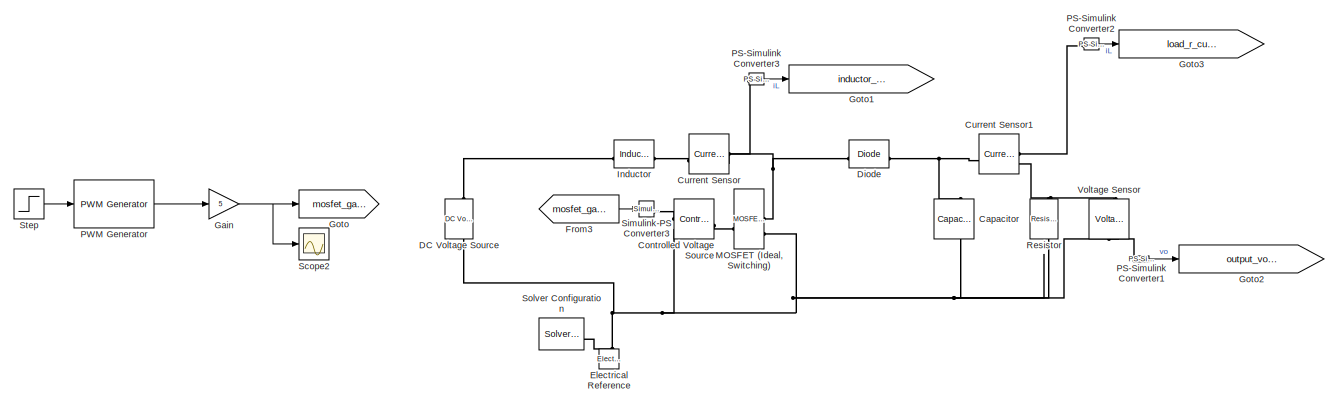
[diagram: root canvas - part 1/3, top left region]
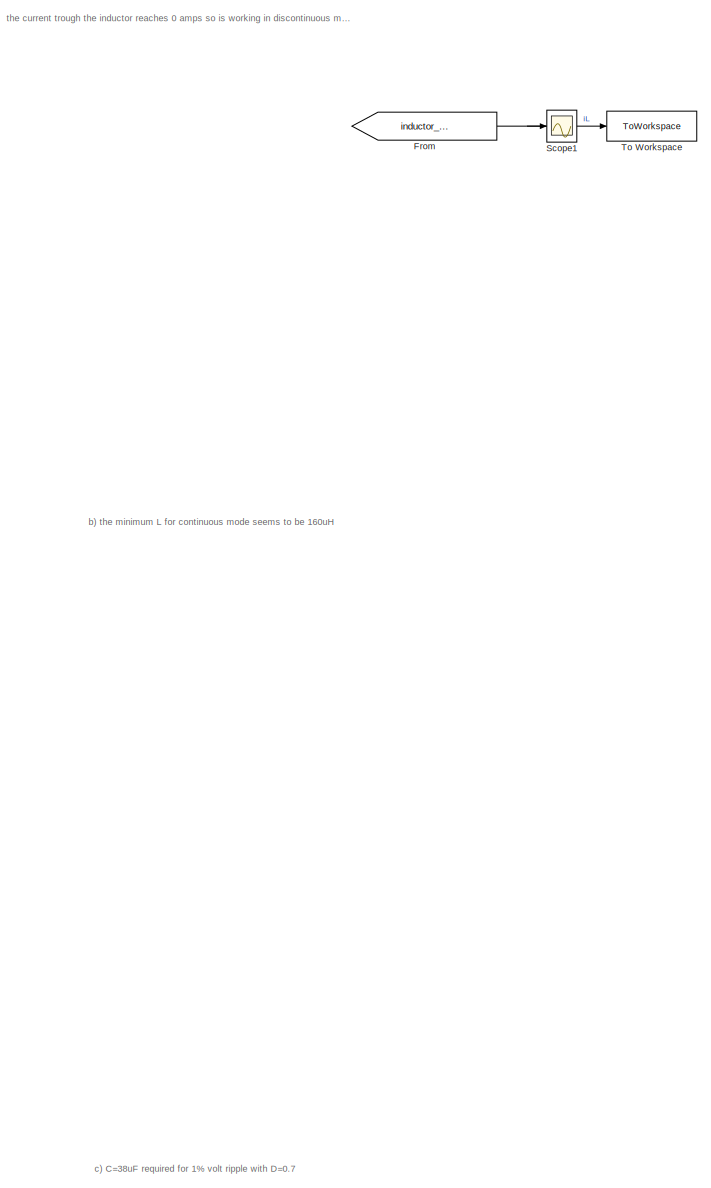
[diagram: root canvas - part 2/3, central region]
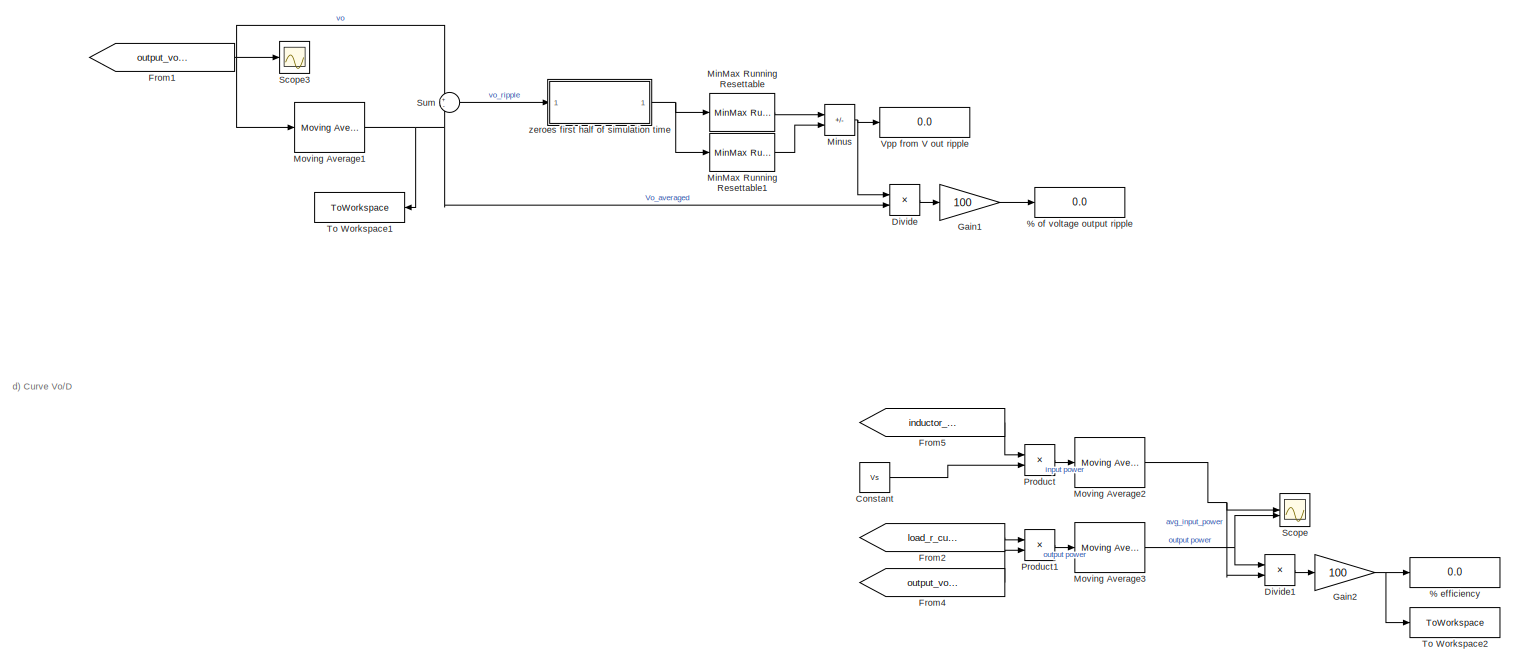
[diagram: root canvas - part 3/3, bottom right region]
MODEL slx_74d3ff82f452
KIND model
CONFIG AbsTol = auto
CONFIG EnableMultiTasking = off
CONFIG FixedStep = auto
CONFIG MaxStep = auto
CONFIG MinStep = auto
CONFIG RelTol = 1e-3
CONFIG SampleTimeConstraint = Unconstrained
CONFIG SolverName = VariableStepAuto
CONFIG StartTime = 0.0
CONFIG StopTime = sim_time
BLOCK [Display] % efficiency
  Decimation = 1
  NameLocation = right
BLOCK [Display] % of voltage output ripple
  Decimation = 1
  NameLocation = right
BLOCK [Reference] Capacitor  REF=fl_lib/Electrical/Electrical Elements/Capacitor
  NameLocation = left
  SourceBlock = fl_lib/Electrical/Electrical Elements/Capacitor
  SourceType = Capacitor
BLOCK [Constant] Constant
  Value = Vs
BLOCK [Reference] Controlled Voltage Source  REF=fl_lib/Electrical/Electrical Sources/Controlled Voltage
Source
  SourceBlock = fl_lib/Electrical/Electrical Sources/Controlled Voltage\nSource
  SourceType = Controlled Voltage\nSource
BLOCK [Reference] Current Sensor  REF=fl_lib/Electrical/Electrical Sensors/Current Sensor
  SourceBlock = fl_lib/Electrical/Electrical Sensors/Current Sensor
  SourceType = Current Sensor
BLOCK [Reference] Current Sensor1  REF=fl_lib/Electrical/Electrical Sensors/Current Sensor
  SourceBlock = fl_lib/Electrical/Electrical Sensors/Current Sensor
  SourceType = Current Sensor
BLOCK [Reference] DC Voltage Source  REF=fl_lib/Electrical/Electrical Sources/DC Voltage Source
  NameLocation = right
  SourceBlock = fl_lib/Electrical/Electrical Sources/DC Voltage Source
  SourceType = DC Voltage Source
BLOCK [Reference] Diode  REF=fl_lib/Electrical/Electrical Elements/Diode
  SourceBlock = fl_lib/Electrical/Electrical Elements/Diode
  SourceType = Diode
BLOCK [Product] Divide
  Inputs = */
BLOCK [Product] Divide1
  Inputs = */
BLOCK [Reference] Electrical Reference  REF=fl_lib/Electrical/Electrical Elements/Electrical Reference
  NameLocation = right
  SourceBlock = fl_lib/Electrical/Electrical Elements/Electrical Reference
  SourceType = Electrical Reference
BLOCK [From] From
  GotoTag = inductor_current
BLOCK [From] From1
  GotoTag = output_voltage
BLOCK [From] From2
  GotoTag = load_r_current
BLOCK [From] From3
  GotoTag = mosfet_gate
BLOCK [From] From4
  GotoTag = output_voltage
BLOCK [From] From5
  GotoTag = inductor_current
BLOCK [Gain] Gain
  Gain = 5
BLOCK [Gain] Gain1
  Gain = 100
BLOCK [Gain] Gain2
  Gain = 100
BLOCK [Goto] Goto
  GotoTag = mosfet_gate
BLOCK [Goto] Goto1
  GotoTag = inductor_current
BLOCK [Goto] Goto2
  GotoTag = output_voltage
BLOCK [Goto] Goto3
  GotoTag = load_r_current
BLOCK [Reference] Inductor  REF=fl_lib/Electrical/Electrical Elements/Inductor
  SourceBlock = fl_lib/Electrical/Electrical Elements/Inductor
  SourceType = Inductor
BLOCK [Reference] MOSFET (Ideal, Switching)  REF=ee_lib/Semiconductors &
Converters/MOSFET
(Ideal,
Switching)
  SourceBlock = ee_lib/Semiconductors &\nConverters/MOSFET\n(Ideal,\nSwitching)
  SourceType = MOSFET\n(Ideal,\nSwitching)
BLOCK [Reference] MinMax Running Resettable  REF=simulink/Math
Operations/MinMax
Running
Resettable
  SourceBlock = simulink/Math\nOperations/MinMax\nRunning\nResettable
  SourceType = MinMax Running Resettable
BLOCK [Reference] MinMax Running Resettable1  REF=simulink/Math
Operations/MinMax
Running
Resettable
  SourceBlock = simulink/Math\nOperations/MinMax\nRunning\nResettable
  SourceType = MinMax Running Resettable
BLOCK [Sum] Minus
  IconShape = rectangular
  Inputs = +-
BLOCK [Reference] Moving Average1  REF=eeGeneralControl/Moving Average
  LibrarySourceBlock = ee_sl_lib/General Control/Moving Average
  SourceBlock = eeGeneralControl/Moving Average
  SourceType = Moving Average
BLOCK [Reference] Moving Average2  REF=eeGeneralControl/Moving Average
  LibrarySourceBlock = ee_sl_lib/General Control/Moving Average
  SourceBlock = eeGeneralControl/Moving Average
  SourceType = Moving Average
BLOCK [Reference] Moving Average3  REF=eeGeneralControl/Moving Average
  LibrarySourceBlock = ee_sl_lib/General Control/Moving Average
  SourceBlock = eeGeneralControl/Moving Average
  SourceType = Moving Average
BLOCK [Reference] PS-Simulink Converter1  REF=nesl_utility/PS-Simulink
Converter
  SourceBlock = nesl_utility/PS-Simulink\nConverter
  SourceType = PS-Simulink\nConverter
BLOCK [Reference] PS-Simulink Converter2  REF=nesl_utility/PS-Simulink
Converter
  SourceBlock = nesl_utility/PS-Simulink\nConverter
  SourceType = PS-Simulink\nConverter
BLOCK [Reference] PS-Simulink Converter3  REF=nesl_utility/PS-Simulink
Converter
  SourceBlock = nesl_utility/PS-Simulink\nConverter
  SourceType = PS-Simulink\nConverter
BLOCK [Reference] PWM Generator  REF=eePwmGenerator/PWM Generator
  LibrarySourceBlock = ee_sl_lib/Pulse Width\nModulation/PWM Generator
  SourceBlock = eePwmGenerator/PWM Generator
  SourceType = PWM Generator
BLOCK [Product] Product
BLOCK [Product] Product1
BLOCK [Reference] Resistor  REF=fl_lib/Electrical/Electrical Elements/Resistor
  NameLocation = left
  SourceBlock = fl_lib/Electrical/Electrical Elements/Resistor
  SourceType = Resistor
BLOCK [Scope] Scope
  Floating = off
  NumInputPorts = 2
  ScopeSpecificationString = Simulink.scopes.TimeScopeBlockCfg('CurrentConfiguration', extmgr.ConfigurationSet(extmgr.Configuration('Core','General UI',true),extmgr.Configuration('Core','Source UI',true),extmgr.Configuration('Sources','WiredSimulink',true,'DataLoggingVariableName','ScopeData1'),extmgr.Configuration('Visuals','Time Domain',true,'SerializedDisplays',{struct('MinYLimReal','-1750.28621','MaxYLimReal','15752.57593...<+1442ch>
BLOCK [Scope] Scope1
  Floating = off
  NumInputPorts = 1
  ScopeSpecificationString = Simulink.scopes.TimeScopeBlockCfg('CurrentConfiguration', extmgr.ConfigurationSet(extmgr.Configuration('Core','General UI',true),extmgr.Configuration('Core','Source UI',true),extmgr.Configuration('Sources','WiredSimulink',true,'DataLoggingVariableName','ScopeData1'),extmgr.Configuration('Visuals','Time Domain',true,'SerializedDisplays',{struct('MinYLimReal','-50.77665','MaxYLimReal','456.98982','Y...<+1471ch>
BLOCK [Scope] Scope2
  Floating = off
  NumInputPorts = 1
  ScopeSpecificationString = Simulink.scopes.TimeScopeBlockCfg('CurrentConfiguration', extmgr.ConfigurationSet(extmgr.Configuration('Core','General UI',true),extmgr.Configuration('Core','Source UI',true),extmgr.Configuration('Sources','WiredSimulink',true,'DataLoggingVariableName','ScopeData2'),extmgr.Configuration('Visuals','Time Domain',true,'SerializedDisplays',{struct('MinYLimReal','-0.625','MaxYLimReal','5.625','YLabelRe...<+1451ch>
BLOCK [Scope] Scope3
  Floating = off
  NumInputPorts = 1
  ScopeSpecificationString = Simulink.scopes.TimeScopeBlockCfg('CurrentConfiguration', extmgr.ConfigurationSet(extmgr.Configuration('Core','General UI',true),extmgr.Configuration('Core','Source UI',true),extmgr.Configuration('Sources','WiredSimulink',true),extmgr.Configuration('Visuals','Time Domain',true,'SerializedDisplays',{struct('MinYLimReal','306.04232','MaxYLimReal','342.23206','YLabelReal','','MinYLimMag','306.04232',...<+1635ch>
BLOCK [Reference] Simulink-PS Converter3  REF=nesl_utility/Simulink-PS
Converter
  SourceBlock = nesl_utility/Simulink-PS\nConverter
  SourceType = Simulink-PS\nConverter
BLOCK [Reference] Solver Configuration  REF=nesl_utility/Solver
Configuration
  SourceBlock = nesl_utility/Solver\nConfiguration
  SourceType = Solver\nConfiguration
BLOCK [Step] Step
  After = duty_cycle
  SampleTime = 0
  Time = 0
BLOCK [Sum] Sum
  Inputs = +-
BLOCK [ToWorkspace] To Workspace
  FixptAsFi = on
  MaxDataPoints = inf
  SampleTime = -1
  SaveFormat = Timeseries
  VariableName = iL
BLOCK [ToWorkspace] To Workspace1
  FixptAsFi = on
  MaxDataPoints = inf
  NameLocation = top
  SampleTime = -1
  SaveFormat = Timeseries
  VariableName = avg_vo
BLOCK [ToWorkspace] To Workspace2
  FixptAsFi = on
  MaxDataPoints = inf
  SampleTime = -1
  SaveFormat = Timeseries
  VariableName = efficiency
BLOCK [Reference] Voltage Sensor  REF=fl_lib/Electrical/Electrical Sensors/Voltage Sensor
  NameLocation = left
  SourceBlock = fl_lib/Electrical/Electrical Sensors/Voltage Sensor
  SourceType = Voltage Sensor
BLOCK [Display] Vpp from V out ripple
  Decimation = 1
  NameLocation = right
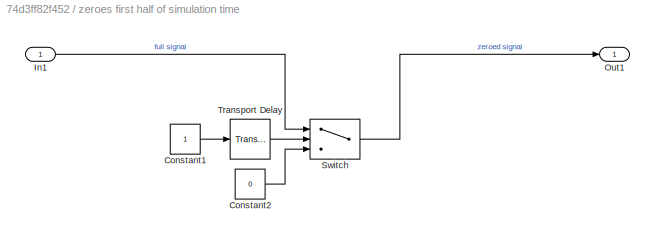
BLOCK [SubSystem] zeroes first half of simulation time
BLOCK [Constant] zeroes first half of simulation time/Constant1
BLOCK [Constant] zeroes first half of simulation time/Constant2
  Value = 0
BLOCK [Inport] zeroes first half of simulation time/In1
BLOCK [Outport] zeroes first half of simulation time/Out1
BLOCK [Switch] zeroes first half of simulation time/Switch
  Criteria = u2 > Threshold
  InputSameDT = off
  SaturateOnIntegerOverflow = off
BLOCK [TransportDelay] zeroes first half of simulation time/Transport Delay
  BufferSize = 5120
  DelayTime = sim_time/2
ANNOTATION (root): the current trough the inductor reaches 0 amps so is working in discontinuous mode with L=100uH
ANNOTATION (root): b) the minimum L for continuous mode seems to be 160uH
ANNOTATION (root): c) C=38uF required for 1% volt ripple with D=0.7
ANNOTATION (root): d) Curve Vo/D
LINE Constant:1 -> Product:2
LINE Divide1:1 -> Gain2:1
LINE Divide:1 -> Gain1:1
NET From1:1 -> Moving Average1:1, Scope3:1, Sum:1
LINE From2:1 -> Product1:1
LINE From3:1 -> Simulink-PS Converter3:1
LINE From4:1 -> Product1:2
LINE From5:1 -> Product:1
NET From:1 -> Scope1:1, To Workspace:1
LINE Gain1:1 -> % of voltage output ripple:1
NET Gain2:1 -> % efficiency:1, To Workspace2:1
NET Gain:1 -> Goto:1, Scope2:1
LINE MinMax Running Resettable1:1 -> Minus:2
LINE MinMax Running Resettable:1 -> Minus:1
NET Minus:1 -> Divide:1, Vpp from V out ripple:1
NET Moving Average1:1 -> Divide:2, Sum:2, To Workspace1:1
NET Moving Average2:1 -> Divide1:2, Scope:1
NET Moving Average3:1 -> Divide1:1, Scope:2
LINE PS-Simulink Converter1:1 -> Goto2:1
LINE PS-Simulink Converter2:1 -> Goto3:1
LINE PS-Simulink Converter3:1 -> Goto1:1
LINE PWM Generator:1 -> Gain:1
LINE Product1:1 -> Moving Average3:1
LINE Product:1 -> Moving Average2:1
LINE Step:1 -> PWM Generator:1
LINE Sum:1 -> zeroes first half of simulation time:1
LINE zeroes first half of simulation time/Constant1:1 -> zeroes first half of simulation time/Transport Delay:1
LINE zeroes first half of simulation time/Constant2:1 -> zeroes first half of simulation time/Switch:3
LINE zeroes first half of simulation time/In1:1 -> zeroes first half of simulation time/Switch:1
LINE zeroes first half of simulation time/Switch:1 -> zeroes first half of simulation time/Out1:1
LINE zeroes first half of simulation time/Transport Delay:1 -> zeroes first half of simulation time/Switch:2
NET zeroes first half of simulation time:1 -> MinMax Running Resettable1:1, MinMax Running Resettable:1
PNET net1: Capacitor:LConn1 -- Current Sensor1:LConn1 -- Diode:RConn1
PNET net2: Capacitor:RConn1 -- Controlled Voltage Source:RConn2 -- DC Voltage Source:RConn1 -- Electrical Reference:LConn1 -- MOSFET (Ideal, Switching):RConn2 -- Resistor:RConn1 -- Solver Configuration:RConn1 -- Voltage Sensor:RConn2
PLINE Controlled Voltage Source:LConn1 -- MOSFET (Ideal, Switching):LConn1
PLINE Controlled Voltage Source:RConn1 -- Simulink-PS Converter3:RConn1
PLINE Current Sensor1:RConn1 -- PS-Simulink Converter2:LConn1
PNET net3: Current Sensor1:RConn2 -- Resistor:LConn1 -- Voltage Sensor:LConn1
PLINE Current Sensor:LConn1 -- Inductor:RConn1
PLINE Current Sensor:RConn1 -- PS-Simulink Converter3:LConn1
PNET net4: Current Sensor:RConn2 -- Diode:LConn1 -- MOSFET (Ideal, Switching):RConn1
PLINE DC Voltage Source:LConn1 -- Inductor:LConn1
PLINE PS-Simulink Converter1:LConn1 -- Voltage Sensor:RConn1
note: NET lines group one-source signal fan-out (src -> all destinations, sorted); 1:1 wires keep LINE; PNET lines group multi-terminal physical nets as a canonical sorted terminal list (undirected conserving connections); 2-terminal nets keep the pairwise PLINE form
